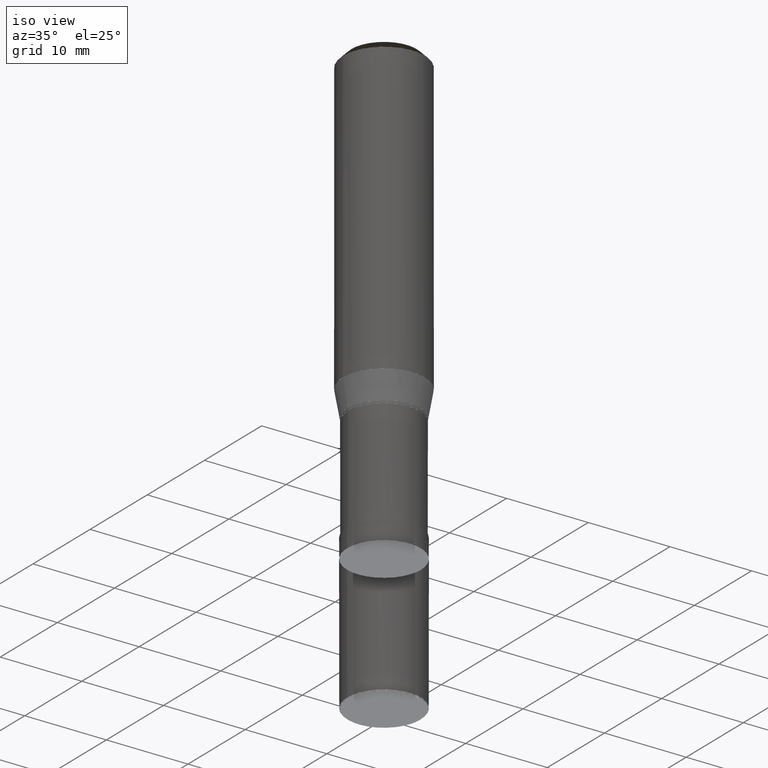
[diagram: clean part render]
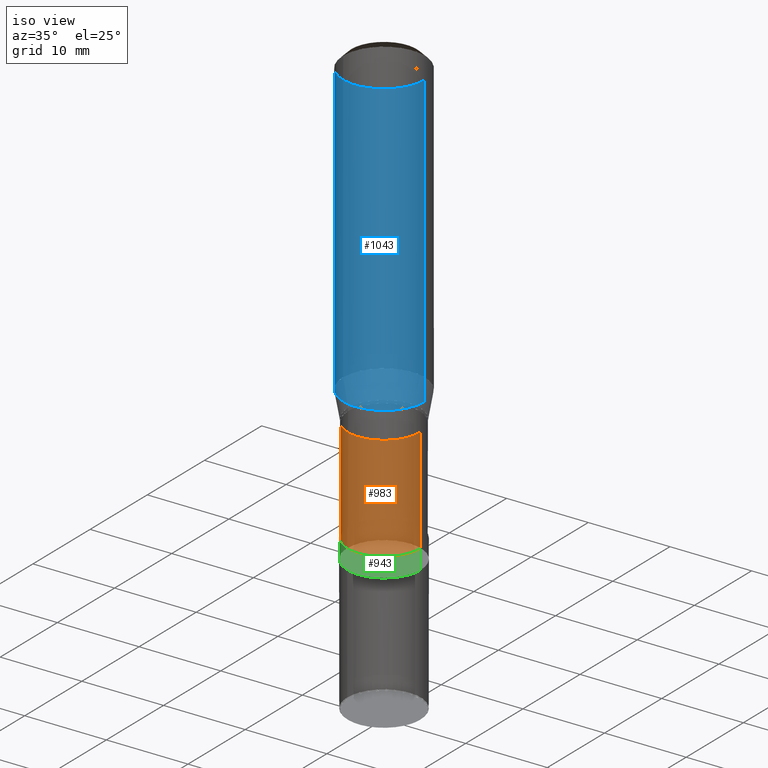
[diagram: same view with three faces highlighted in distinct colors, each labeled with its STEP entity id]
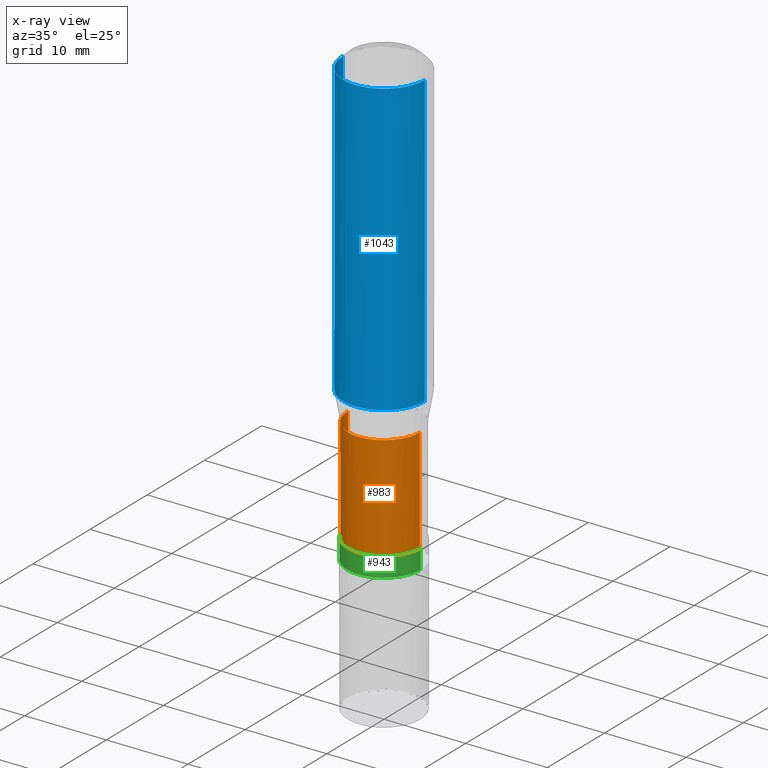
[diagram: x-ray of the same camera — body ghosted, the three highlighted faces saturated]
A machine part, iso view with three faces highlighted in distinct colors.
The next image is the same camera in x-ray (body ghosted, the three faces saturated) — at least one of them is partly hidden behind the body in this view.
Their STEP definitions:

[orange] entity #983 — the highlighted face is a freeform B-spline surface patch.
#523=CARTESIAN_POINT('',(4.4,0.0,-16.402769091771));
#527=CARTESIAN_POINT('',(-4.4,0.0,-16.402769091771));
#528=CARTESIAN_POINT('',(4.4,0.0,-3.577746418822));
#532=CARTESIAN_POINT('',(-4.4,0.0,-3.577746418822));
#562=CARTESIAN_POINT('',(-4.4,-4.4,-16.402769091771));
#563=CARTESIAN_POINT('',(0.0,-4.4,-16.402769091771));
#564=CARTESIAN_POINT('',(4.4,-4.4,-16.402769091771));
#565=CARTESIAN_POINT('',(-4.4,-4.4,-3.577746418822));
#566=CARTESIAN_POINT('',(0.0,-4.4,-3.577746418822));
#567=CARTESIAN_POINT('',(4.4,-4.4,-3.577746418822));
#964=(
BOUNDED_SURFACE()
B_SPLINE_SURFACE(1,2,(
(#527,#562,#563,#564,#523),
(#532,#565,#566,#567,#528)
), .UNSPECIFIED.,.F.,.F.,.F.)
B_SPLINE_SURFACE_WITH_KNOTS((2,2),(3,2,3),(
0.0,1.0),(
0.0,0.5,1.0), .UNSPECIFIED.)
GEOMETRIC_REPRESENTATION_ITEM()
RATIONAL_B_SPLINE_SURFACE(((1.0,0.707106781187,1.0,0.707106781187,1.0),
(1.0,0.707106781187,1.0,0.707106781187,1.0)
))
REPRESENTATION_ITEM('')
SURFACE()
);
#965=(
BOUNDED_CURVE()
B_SPLINE_CURVE(2,(#523,#564,#563,#562,#527),.UNSPECIFIED.,.F.,.F.)
B_SPLINE_CURVE_WITH_KNOTS((3,2,3),
(0.0,0.5,1.0),.UNSPECIFIED.)
CURVE()
GEOMETRIC_REPRESENTATION_ITEM()
RATIONAL_B_SPLINE_CURVE((1.0,0.707106781187,1.0,0.707106781187,1.0))
REPRESENTATION_ITEM('')
);
#966=(
BOUNDED_CURVE()
B_SPLINE_CURVE(1,(#527,#532),.UNSPECIFIED.,.F.,.F.)
B_SPLINE_CURVE_WITH_KNOTS((2,2),
(0.0,1.0),.UNSPECIFIED.)
CURVE()
GEOMETRIC_REPRESENTATION_ITEM()
RATIONAL_B_SPLINE_CURVE((1.0,1.0))
REPRESENTATION_ITEM('')
);
#967=(
BOUNDED_CURVE()
B_SPLINE_CURVE(2,(#532,#565,#566,#567,#528),.UNSPECIFIED.,.F.,.F.)
B_SPLINE_CURVE_WITH_KNOTS((3,2,3),
(0.0,0.5,1.0),.UNSPECIFIED.)
CURVE()
GEOMETRIC_REPRESENTATION_ITEM()
RATIONAL_B_SPLINE_CURVE((1.0,0.707106781187,1.0,0.707106781187,1.0))
REPRESENTATION_ITEM('')
);
#968=(
BOUNDED_CURVE()
B_SPLINE_CURVE(1,(#528,#523),.UNSPECIFIED.,.F.,.F.)
B_SPLINE_CURVE_WITH_KNOTS((2,2),
(0.0,1.0),.UNSPECIFIED.)
CURVE()
GEOMETRIC_REPRESENTATION_ITEM()
RATIONAL_B_SPLINE_CURVE((1.0,1.0))
REPRESENTATION_ITEM('')
);
#969=VERTEX_POINT('',#523);
#970=VERTEX_POINT('',#527);
#971=VERTEX_POINT('',#528);
#972=VERTEX_POINT('',#532);
#973=EDGE_CURVE('',#969,#970,#965,.T.);
#974=EDGE_CURVE('',#970,#972,#966,.T.);
#975=EDGE_CURVE('',#972,#971,#967,.T.);
#976=EDGE_CURVE('',#971,#969,#968,.T.);
#977=ORIENTED_EDGE('',*,*,#973,.T.);
#978=ORIENTED_EDGE('',*,*,#974,.T.);
#979=ORIENTED_EDGE('',*,*,#975,.T.);
#980=ORIENTED_EDGE('',*,*,#976,.T.);
#981=EDGE_LOOP('',(#977,#978,#979,#980));
#982=FACE_OUTER_BOUND('',#981,.T.);
#983=ADVANCED_FACE('',(#982),#964,.T.);

[blue] entity #1043 — the highlighted face is a freeform B-spline surface patch.
#543=CARTESIAN_POINT('',(5.0,0.0,0.0));
#547=CARTESIAN_POINT('',(-5.0,0.0,0.0));
#548=CARTESIAN_POINT('',(5.0,0.0,35.597));
#552=CARTESIAN_POINT('',(-5.0,0.0,35.597));
#574=CARTESIAN_POINT('',(-5.0,-5.0,0.0));
#575=CARTESIAN_POINT('',(0.0,-5.0,0.0));
#576=CARTESIAN_POINT('',(5.0,-5.0,0.0));
#577=CARTESIAN_POINT('',(-5.0,-5.0,35.597));
#578=CARTESIAN_POINT('',(0.0,-5.0,35.597));
#579=CARTESIAN_POINT('',(5.0,-5.0,35.597));
#1024=(
BOUNDED_SURFACE()
B_SPLINE_SURFACE(1,2,(
(#547,#574,#575,#576,#543),
(#552,#577,#578,#579,#548)
), .UNSPECIFIED.,.F.,.F.,.F.)
B_SPLINE_SURFACE_WITH_KNOTS((2,2),(3,2,3),(
0.0,1.0),(
0.0,0.5,1.0), .UNSPECIFIED.)
GEOMETRIC_REPRESENTATION_ITEM()
RATIONAL_B_SPLINE_SURFACE(((1.0,0.707106781187,1.0,0.707106781187,1.0),
(1.0,0.707106781187,1.0,0.707106781187,1.0)
))
REPRESENTATION_ITEM('')
SURFACE()
);
#1025=(
BOUNDED_CURVE()
B_SPLINE_CURVE(2,(#543,#576,#575,#574,#547),.UNSPECIFIED.,.F.,.F.)
B_SPLINE_CURVE_WITH_KNOTS((3,2,3),
(0.0,0.5,1.0),.UNSPECIFIED.)
CURVE()
GEOMETRIC_REPRESENTATION_ITEM()
RATIONAL_B_SPLINE_CURVE((1.0,0.707106781187,1.0,0.707106781187,1.0))
REPRESENTATION_ITEM('')
);
#1026=(
BOUNDED_CURVE()
B_SPLINE_CURVE(1,(#547,#552),.UNSPECIFIED.,.F.,.F.)
B_SPLINE_CURVE_WITH_KNOTS((2,2),
(0.0,1.0),.UNSPECIFIED.)
CURVE()
GEOMETRIC_REPRESENTATION_ITEM()
RATIONAL_B_SPLINE_CURVE((1.0,1.0))
REPRESENTATION_ITEM('')
);
#1027=(
BOUNDED_CURVE()
B_SPLINE_CURVE(2,(#552,#577,#578,#579,#548),.UNSPECIFIED.,.F.,.F.)
B_SPLINE_CURVE_WITH_KNOTS((3,2,3),
(0.0,0.5,1.0),.UNSPECIFIED.)
CURVE()
GEOMETRIC_REPRESENTATION_ITEM()
RATIONAL_B_SPLINE_CURVE((1.0,0.707106781187,1.0,0.707106781187,1.0))
REPRESENTATION_ITEM('')
);
#1028=(
BOUNDED_CURVE()
B_SPLINE_CURVE(1,(#548,#543),.UNSPECIFIED.,.F.,.F.)
B_SPLINE_CURVE_WITH_KNOTS((2,2),
(0.0,1.0),.UNSPECIFIED.)
CURVE()
GEOMETRIC_REPRESENTATION_ITEM()
RATIONAL_B_SPLINE_CURVE((1.0,1.0))
REPRESENTATION_ITEM('')
);
#1029=VERTEX_POINT('',#543);
#1030=VERTEX_POINT('',#547);
#1031=VERTEX_POINT('',#548);
#1032=VERTEX_POINT('',#552);
#1033=EDGE_CURVE('',#1029,#1030,#1025,.T.);
#1034=EDGE_CURVE('',#1030,#1032,#1026,.T.);
#1035=EDGE_CURVE('',#1032,#1031,#1027,.T.);
#1036=EDGE_CURVE('',#1031,#1029,#1028,.T.);
#1037=ORIENTED_EDGE('',*,*,#1033,.T.);
#1038=ORIENTED_EDGE('',*,*,#1034,.T.);
#1039=ORIENTED_EDGE('',*,*,#1035,.T.);
#1040=ORIENTED_EDGE('',*,*,#1036,.T.);
#1041=EDGE_LOOP('',(#1037,#1038,#1039,#1040));
#1042=FACE_OUTER_BOUND('',#1041,.T.);
#1043=ADVANCED_FACE('',(#1042),#1024,.T.);

[green] entity #943 — the highlighted face is a freeform B-spline surface patch.
#503=CARTESIAN_POINT('',(4.5,0.0,-18.777769091771));
#507=CARTESIAN_POINT('',(-4.5,0.0,-18.777769091771));
#515=CARTESIAN_POINT('',(-4.5,-4.5,-18.777769091771));
#516=CARTESIAN_POINT('',(0.0,-4.5,-18.777769091771));
#517=CARTESIAN_POINT('',(4.5,-4.5,-18.777769091771));
#518=CARTESIAN_POINT('',(4.5,0.0,-16.402769091771));
#522=CARTESIAN_POINT('',(-4.5,0.0,-16.402769091771));
#559=CARTESIAN_POINT('',(-4.5,-4.5,-16.402769091771));
#560=CARTESIAN_POINT('',(0.0,-4.5,-16.402769091771));
#561=CARTESIAN_POINT('',(4.5,-4.5,-16.402769091771));
#924=(
BOUNDED_SURFACE()
B_SPLINE_SURFACE(1,2,(
(#507,#515,#516,#517,#503),
(#522,#559,#560,#561,#518)
), .UNSPECIFIED.,.F.,.F.,.F.)
B_SPLINE_SURFACE_WITH_KNOTS((2,2),(3,2,3),(
0.0,1.0),(
0.0,0.5,1.0), .UNSPECIFIED.)
GEOMETRIC_REPRESENTATION_ITEM()
RATIONAL_B_SPLINE_SURFACE(((1.0,0.707106781187,1.0,0.707106781187,1.0),
(1.0,0.707106781187,1.0,0.707106781187,1.0)
))
REPRESENTATION_ITEM('')
SURFACE()
);
#925=(
BOUNDED_CURVE()
B_SPLINE_CURVE(2,(#503,#517,#516,#515,#507),.UNSPECIFIED.,.F.,.F.)
B_SPLINE_CURVE_WITH_KNOTS((3,2,3),
(0.0,0.5,1.0),.UNSPECIFIED.)
CURVE()
GEOMETRIC_REPRESENTATION_ITEM()
RATIONAL_B_SPLINE_CURVE((1.0,0.707106781187,1.0,0.707106781187,1.0))
REPRESENTATION_ITEM('')
);
#926=(
BOUNDED_CURVE()
B_SPLINE_CURVE(1,(#507,#522),.UNSPECIFIED.,.F.,.F.)
B_SPLINE_CURVE_WITH_KNOTS((2,2),
(0.0,1.0),.UNSPECIFIED.)
CURVE()
GEOMETRIC_REPRESENTATION_ITEM()
RATIONAL_B_SPLINE_CURVE((1.0,1.0))
REPRESENTATION_ITEM('')
);
#927=(
BOUNDED_CURVE()
B_SPLINE_CURVE(2,(#522,#559,#560,#561,#518),.UNSPECIFIED.,.F.,.F.)
B_SPLINE_CURVE_WITH_KNOTS((3,2,3),
(0.0,0.5,1.0),.UNSPECIFIED.)
CURVE()
GEOMETRIC_REPRESENTATION_ITEM()
RATIONAL_B_SPLINE_CURVE((1.0,0.707106781187,1.0,0.707106781187,1.0))
REPRESENTATION_ITEM('')
);
#928=(
BOUNDED_CURVE()
B_SPLINE_CURVE(1,(#518,#503),.UNSPECIFIED.,.F.,.F.)
B_SPLINE_CURVE_WITH_KNOTS((2,2),
(0.0,1.0),.UNSPECIFIED.)
CURVE()
GEOMETRIC_REPRESENTATION_ITEM()
RATIONAL_B_SPLINE_CURVE((1.0,1.0))
REPRESENTATION_ITEM('')
);
#929=VERTEX_POINT('',#503);
#930=VERTEX_POINT('',#507);
#931=VERTEX_POINT('',#518);
#932=VERTEX_POINT('',#522);
#933=EDGE_CURVE('',#929,#930,#925,.T.);
#934=EDGE_CURVE('',#930,#932,#926,.T.);
#935=EDGE_CURVE('',#932,#931,#927,.T.);
#936=EDGE_CURVE('',#931,#929,#928,.T.);
#937=ORIENTED_EDGE('',*,*,#933,.T.);
#938=ORIENTED_EDGE('',*,*,#934,.T.);
#939=ORIENTED_EDGE('',*,*,#935,.T.);
#940=ORIENTED_EDGE('',*,*,#936,.T.);
#941=EDGE_LOOP('',(#937,#938,#939,#940));
#942=FACE_OUTER_BOUND('',#941,.T.);
#943=ADVANCED_FACE('',(#942),#924,.T.);